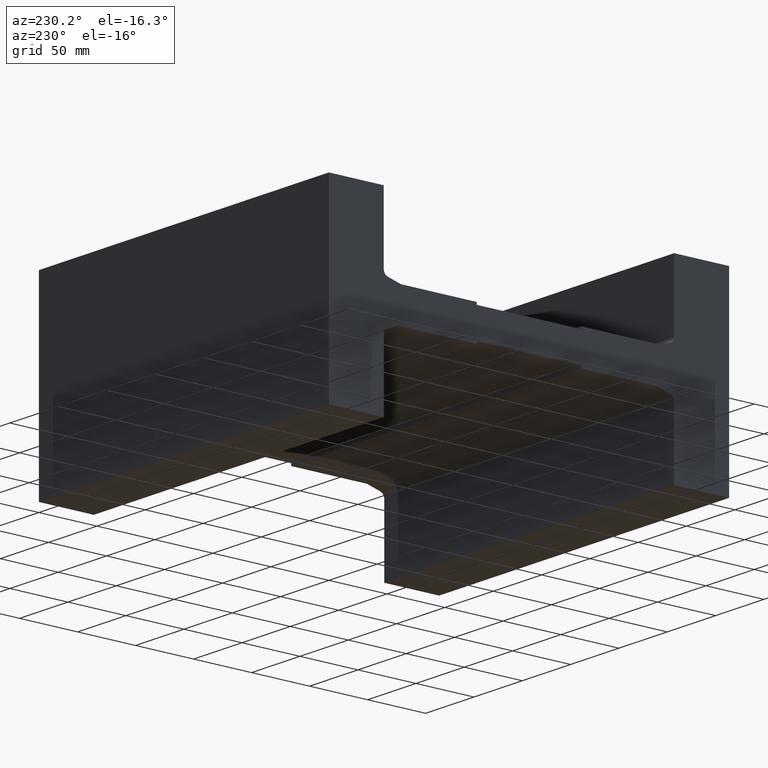
[diagram: clean part render]
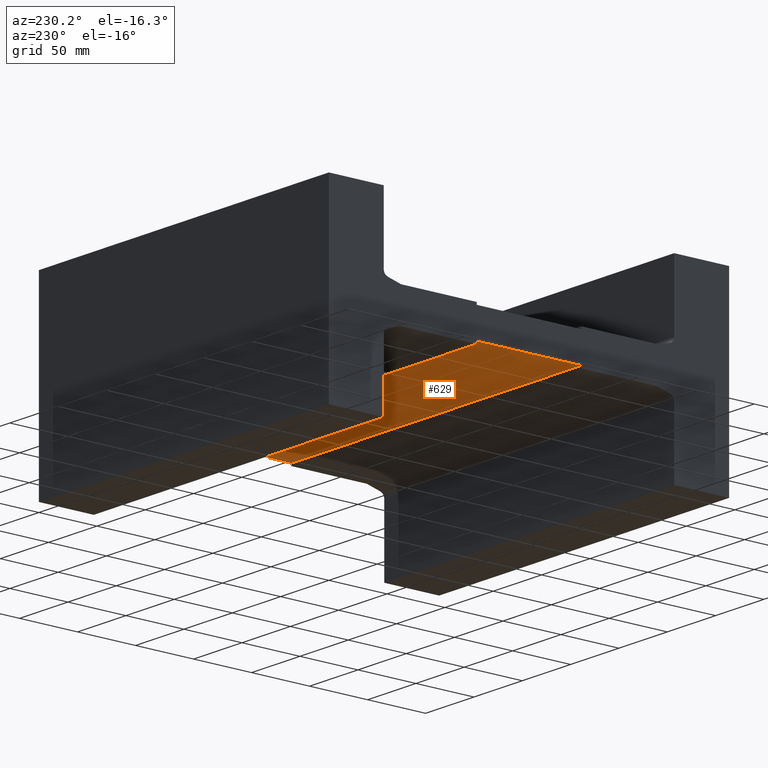
[diagram: same view with one face highlighted and labeled with its STEP entity id]
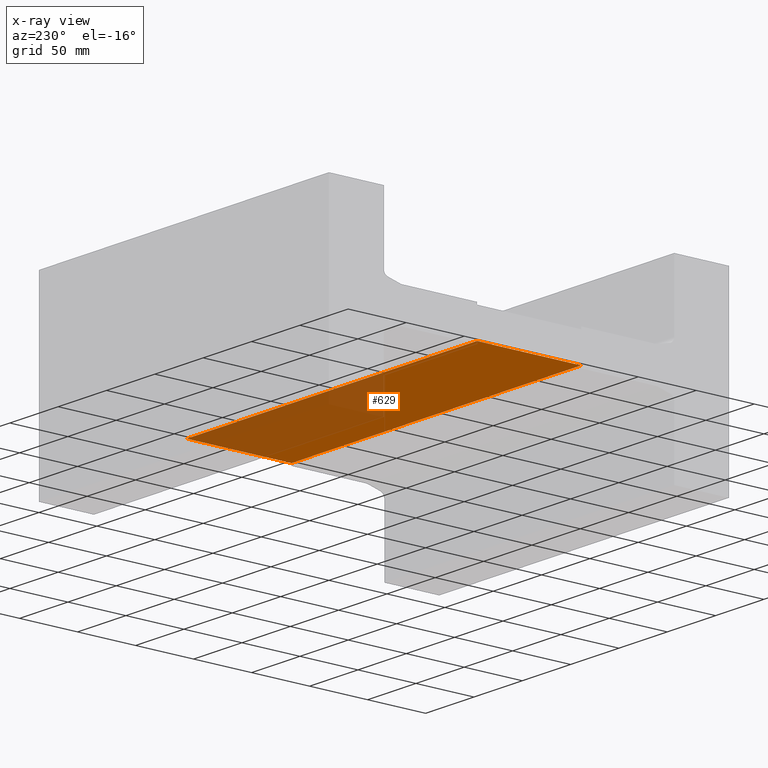
[diagram: x-ray of the same camera — body ghosted, the highlighted face saturated]
A machine part, auxiliary view. The second image highlights one B-rep face of the part: STEP entity #629.
The next image is the same camera in x-ray: the body ghosted, the highlighted face saturated — about 41% of this face is hidden behind the body in this view.
In plain terms, the highlighted planar face has unit normal (0, -0, -1).
Its self-contained STEP definition (entity closure, byte-faithful):
#36=PLANE('',#687);
#66=FACE_OUTER_BOUND('',#96,.T.);
#96=EDGE_LOOP('',(#528,#529,#530,#531));
#149=LINE('',#963,#225);
#170=LINE('',#1004,#246);
#171=LINE('',#1007,#247);
#172=LINE('',#1008,#248);
#225=VECTOR('',#790,10.);
#246=VECTOR('',#831,10.);
#247=VECTOR('',#834,10.);
#248=VECTOR('',#835,10.);
#302=VERTEX_POINT('',#960);
#303=VERTEX_POINT('',#962);
#313=VERTEX_POINT('',#1002);
#314=VERTEX_POINT('',#1006);
#373=EDGE_CURVE('',#302,#303,#149,.T.);
#394=EDGE_CURVE('',#302,#313,#170,.T.);
#395=EDGE_CURVE('',#313,#314,#171,.T.);
#396=EDGE_CURVE('',#303,#314,#172,.T.);
#528=ORIENTED_EDGE('',*,*,#395,.T.);
#529=ORIENTED_EDGE('',*,*,#396,.F.);
#530=ORIENTED_EDGE('',*,*,#373,.F.);
#531=ORIENTED_EDGE('',*,*,#394,.T.);
#629=ADVANCED_FACE('',(#66),#36,.T.);
#687=AXIS2_PLACEMENT_3D('',#1005,#832,#833);
#790=DIRECTION('',(0.,-1.,3.20731096002823E-16));
#831=DIRECTION('',(1.,0.,0.));
#832=DIRECTION('center_axis',(0.,-3.20731096002823E-16,-1.));
#833=DIRECTION('ref_axis',(-1.,0.,0.));
#834=DIRECTION('',(0.,-1.,3.20731096002823E-16));
#835=DIRECTION('',(1.,0.,0.));
#960=CARTESIAN_POINT('',(0.,-127.5,-12.4999999999999));
#962=CARTESIAN_POINT('',(0.,-217.5,-12.4999999999999));
#963=CARTESIAN_POINT('',(0.,-127.5,-12.4999999999999));
#1002=CARTESIAN_POINT('',(300.,-127.5,-12.4999999999999));
#1004=CARTESIAN_POINT('',(0.,-127.5,-12.4999999999999));
#1005=CARTESIAN_POINT('Origin',(0.,-127.5,-12.4999999999999));
#1006=CARTESIAN_POINT('',(300.,-217.5,-12.4999999999999));
#1007=CARTESIAN_POINT('',(300.,-127.5,-12.4999999999999));
#1008=CARTESIAN_POINT('',(0.,-217.5,-12.4999999999999));